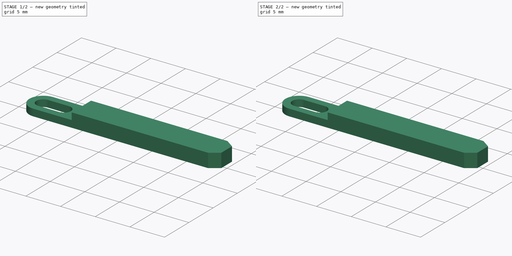
[diagram: build sequence overview — one tinted view per stage of 2, left to right]
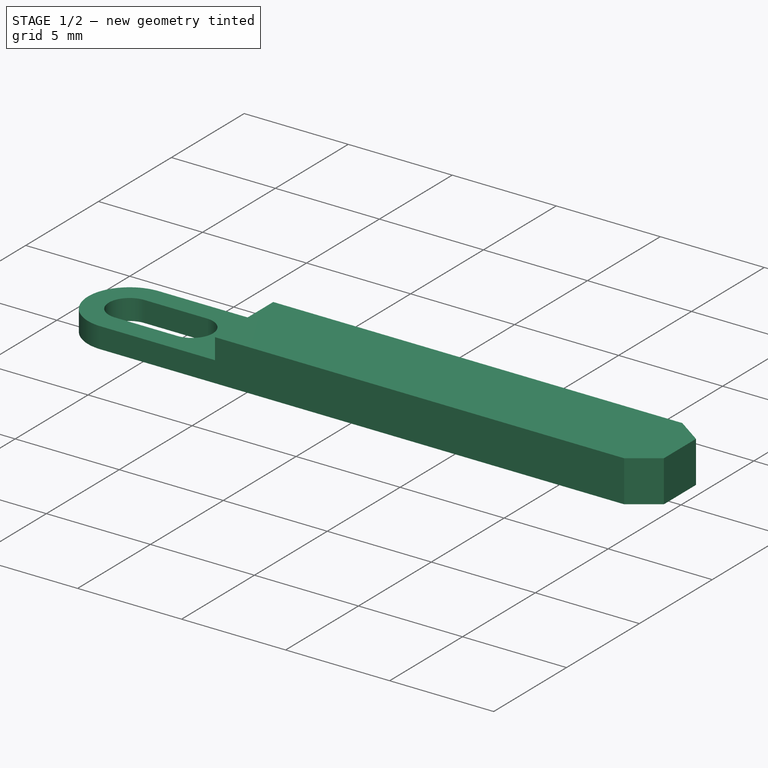
[diagram: stage 1 of 2 — iso view after this stage's code; geometry added in this stage tinted green]
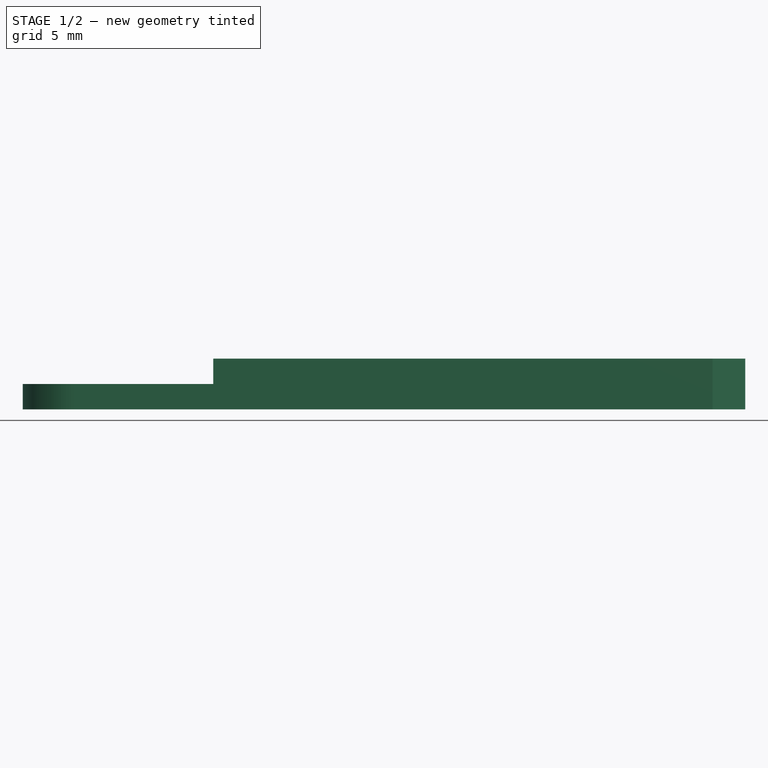
[diagram: stage 1 of 2 — front view after this stage's code; geometry added in this stage tinted green]
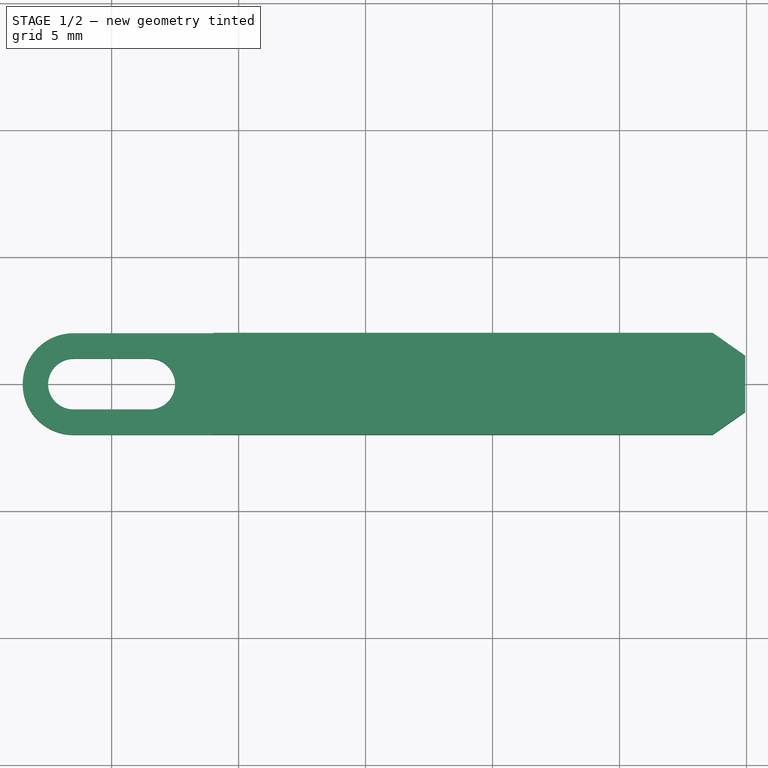
[diagram: stage 1 of 2 — top view after this stage's code; geometry added in this stage tinted green]
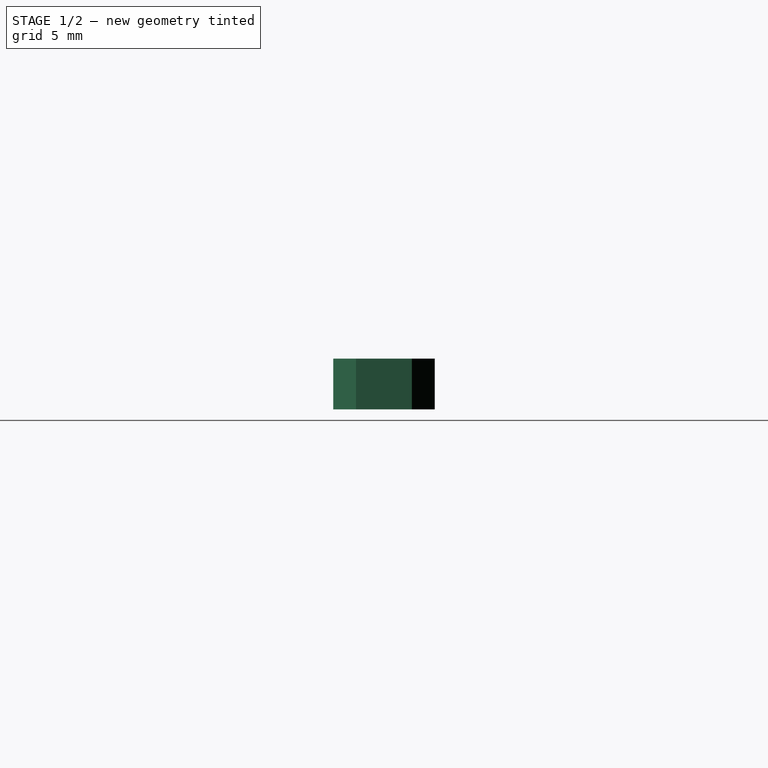
[diagram: stage 1 of 2 — right view after this stage's code; geometry added in this stage tinted green]
FCSTD DOCUMENT  (FreeCAD 0.15R4671 (Git))
Label: Inserto
License: All rights reserved
LicenseURL: http://en.wikipedia.org/wiki/All_rights_reserved
objects: Sketcher::SketchObject×2, PartDesign::Pad×1, PartDesign::Pocket×1, Part::MultiCommon×1, Part::Feature×1
note: 8 computed .brp shape members not serialized (recipe doc carries the construction recipe); baked Part::Feature solids carry a one-line shape summary decoded from their .brp

FEATURE [Sketcher::SketchObject] Sketch
  sketch-geometry (10):
    g0: LineSegment StartX=-1.49998 StartY=2 StartZ=0 EndX=23.6647 EndY=2 EndZ=0
    g1: LineSegment StartX=24.95 StartY=1.1 StartZ=0 EndX=24.95 EndY=-1.1 EndZ=0
    g2: LineSegment StartX=23.6647 StartY=-2 StartZ=0 EndX=-1.5 EndY=-2 EndZ=0
    g3: LineSegment StartX=-1.5 StartY=1 StartZ=0 EndX=1.5 EndY=1 EndZ=0
    g4: LineSegment StartX=1.5 StartY=-1 StartZ=0 EndX=-1.5 EndY=-1 EndZ=0
    g5: ArcOfCircle CenterX=1.5 CenterY=0 CenterZ=0 NormalX=0 NormalY=0 NormalZ=1 Radius=1 StartAngle=4.71239 EndAngle=7.85398
    g6: ArcOfCircle CenterX=-1.5 CenterY=0 CenterZ=0 NormalX=0 NormalY=0 NormalZ=1 Radius=1 StartAngle=1.5708 EndAngle=4.71239
    g7: ArcOfCircle CenterX=-1.5 CenterY=0 CenterZ=0 NormalX=0 NormalY=0 NormalZ=1 Radius=2 StartAngle=1.57079 EndAngle=4.71239
    g8: LineSegment StartX=23.6647 StartY=2 StartZ=0 EndX=24.95 EndY=1.1 EndZ=0
    g9: LineSegment StartX=23.6647 StartY=-2 StartZ=0 EndX=24.95 EndY=-1.1 EndZ=0
  constraints (32):
    c: Horizontal(g0)
    c: Horizontal(g2)
    c: Vertical(g1)
    c: Horizontal(g3)
    c: Horizontal(g4)
    c: DistanceY(g2,g0) = 4
    c: PointOnObject(g5,g-1)
    c: Coincident(g5,g3)
    c: Coincident(g5,g4)
    c: PointOnObject(g6,g-1)
    c: Coincident(g6,g3)
    c: Coincident(g6,g4)
    c: Tangent(g3,g5)
    c: Tangent(g6,g3)
    c: Symmetric(g3,g3,g-2)
    c: DistanceY(g3,g4) = -2
    c: Equal(g3,g4)
    c: DistanceX(g3) = 3
    c: Coincident(g7,g6)
    c: Coincident(g7,g0)
    c: Tangent(g7,g0)
    c: Tangent(g7,g2) = 1.5708
    c: Coincident(g7,g2)
    c: Coincident(g0,g8)
    c: Coincident(g1,g8)
    c: Coincident(g1,g9)
    c: Coincident(g2,g9)
    c: Symmetric(g1,g1,g-1)
    c: DistanceY(g1) = -2.2
    c: Equal(g8,g9)
    c: DistanceX(g0,g1) = 26.45
    c: Angle(g0,g8) = 2.53073
FEATURE [PartDesign::Pad] Pad
  Length = 2
  Length2 = 100
  Reversed = true
  Sketch = -> Sketch
  Type = 0
FEATURE [Sketcher::SketchObject] Sketch001
  Support = -> Pad [Face11]
  sketch-geometry (4):
    g0: LineSegment StartX=-4 StartY=2.1 StartZ=0 EndX=4 EndY=2.1 EndZ=0
    g1: LineSegment StartX=4 StartY=2.1 StartZ=0 EndX=4 EndY=-2.1 EndZ=0
    g2: LineSegment StartX=4 StartY=-2.1 StartZ=0 EndX=-4 EndY=-2.1 EndZ=0
    g3: LineSegment StartX=-4 StartY=-2.1 StartZ=0 EndX=-4 EndY=2.1 EndZ=0
  constraints (12):
    c: Coincident(g0,g1)
    c: Coincident(g1,g2)
    c: Coincident(g2,g3)
    c: Coincident(g3,g0)
    c: Horizontal(g0)
    c: Horizontal(g2)
    c: Vertical(g1)
    c: Vertical(g3)
    c: Symmetric(g0,g0,g-2)
    c: Symmetric(g0,g1,g-1)
    c: DistanceY(g1) = -4.2
    c: DistanceX(g0) = 8
FEATURE [PartDesign::Pocket] Pocket
  Length = 1
  Sketch = -> Sketch001
  Type = 0
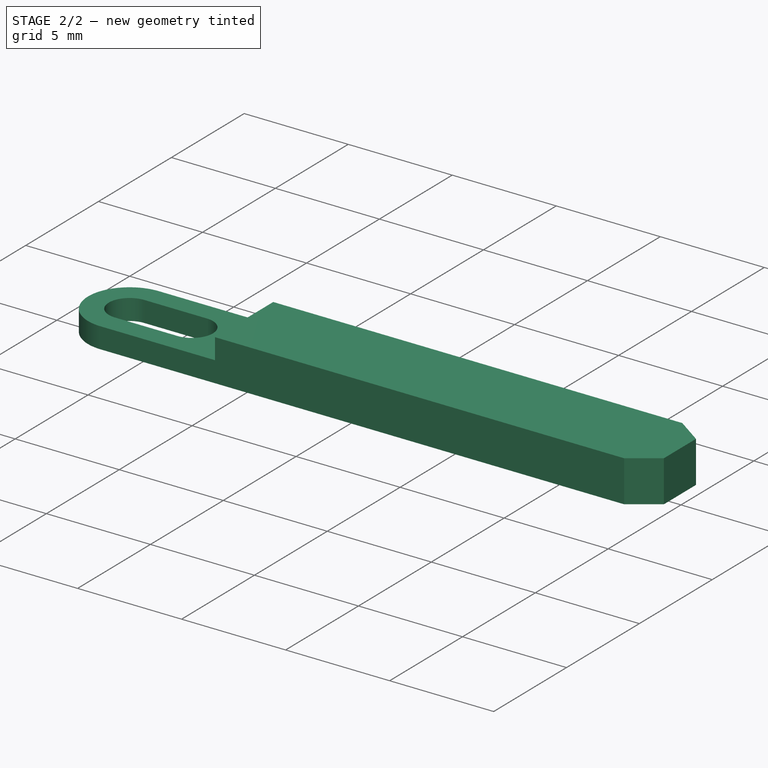
[diagram: stage 2 of 2 — iso view after this stage's code; geometry added in this stage tinted green]
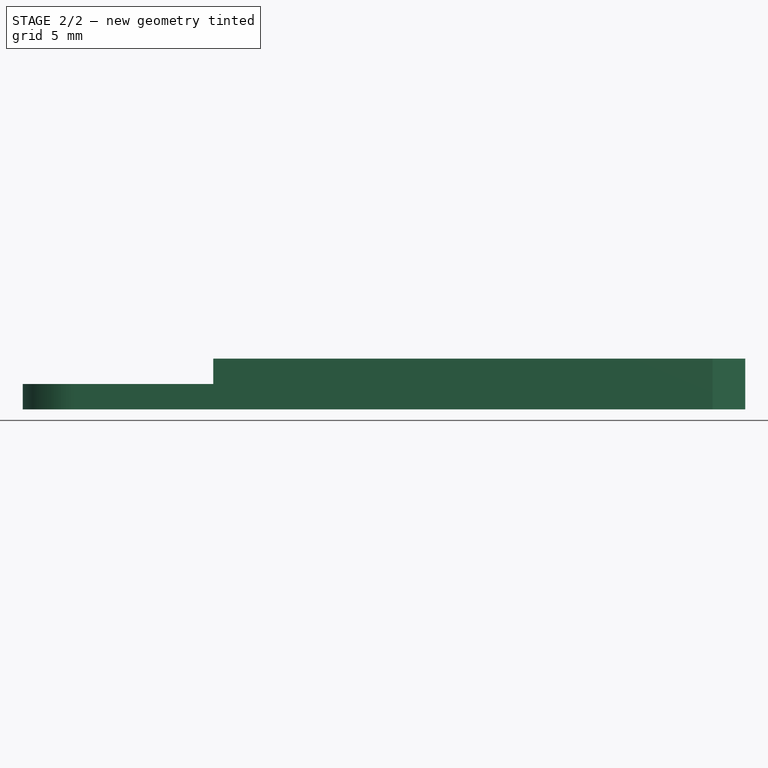
[diagram: stage 2 of 2 — front view after this stage's code; geometry added in this stage tinted green]
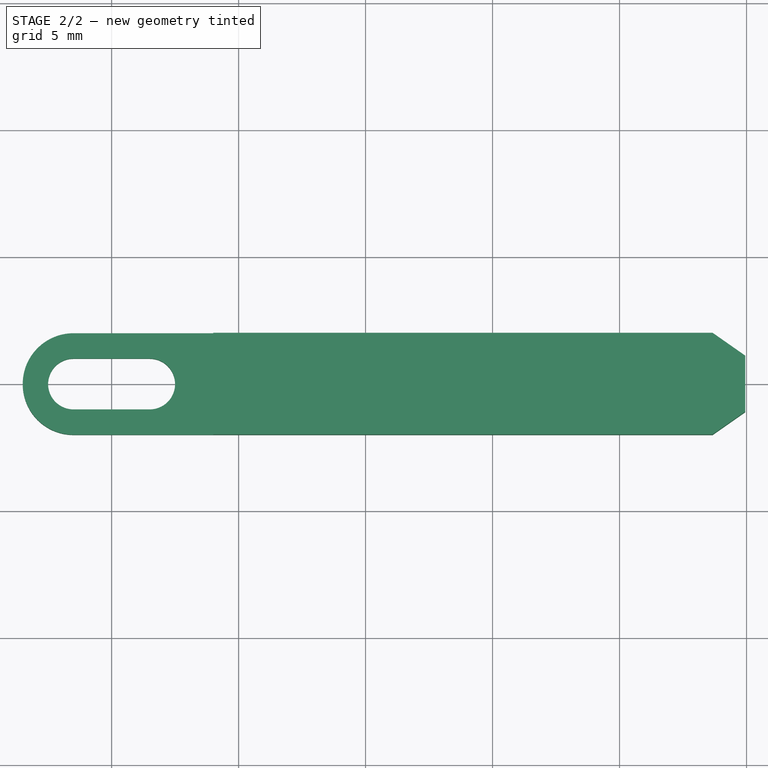
[diagram: stage 2 of 2 — top view after this stage's code; geometry added in this stage tinted green]
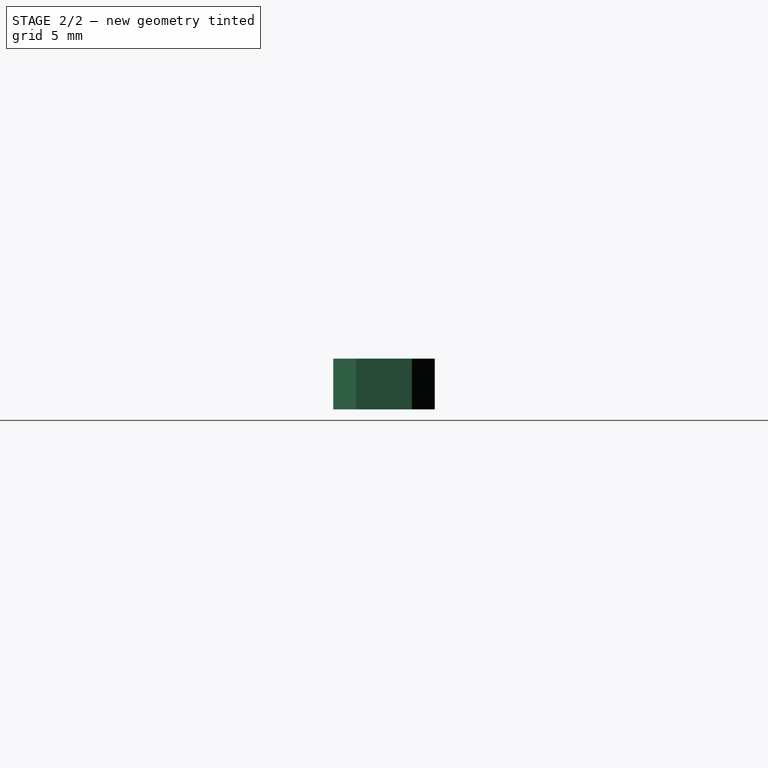
[diagram: stage 2 of 2 — right view after this stage's code; geometry added in this stage tinted green]
FEATURE [Part::MultiCommon] Common
  Shapes = -> [Pocket,Pad]
FEATURE [Part::Feature] Common001  label="L_N"
  shape: bbox 28.45 x 4 x 2 mm, 14 faces (baked)
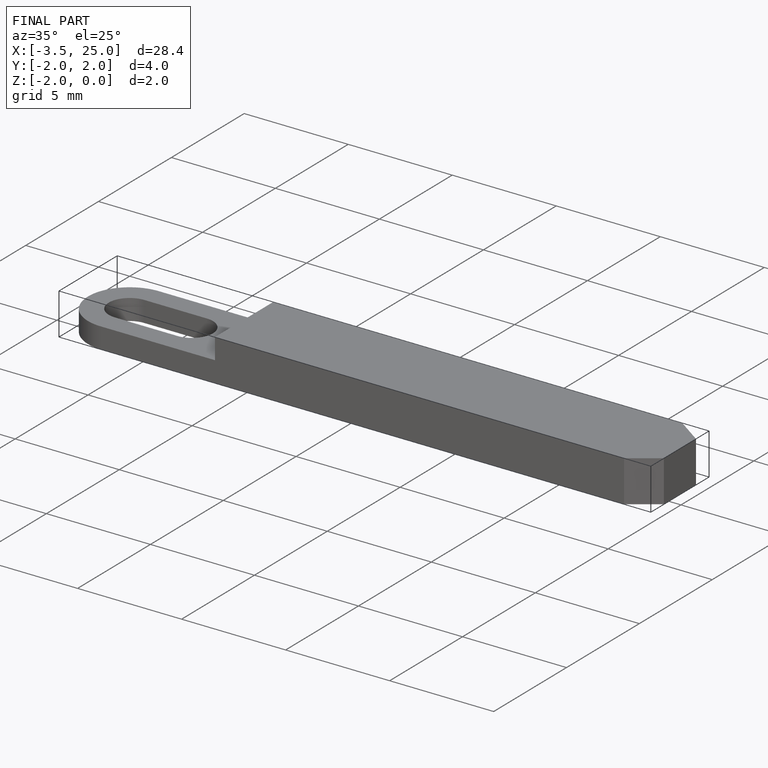
[diagram: finished part — iso view with bounding-box wireframe]
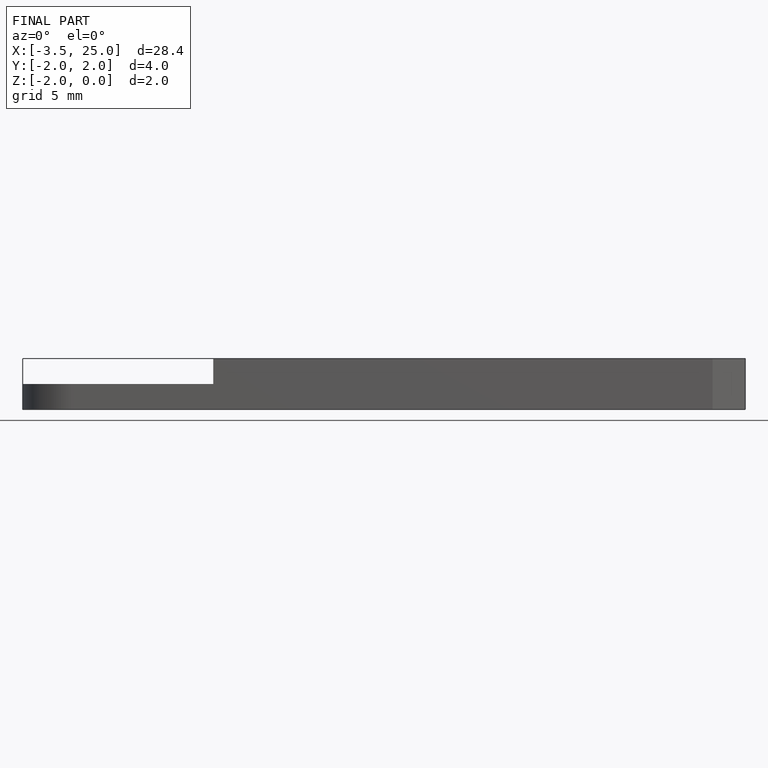
[diagram: finished part — front view with bounding-box wireframe]
